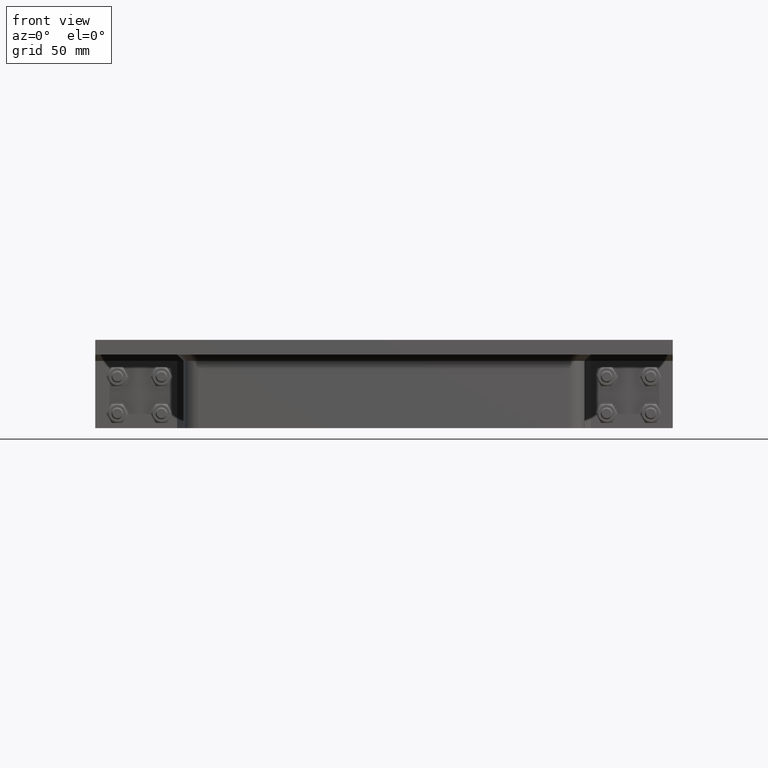
[diagram: clean part render]
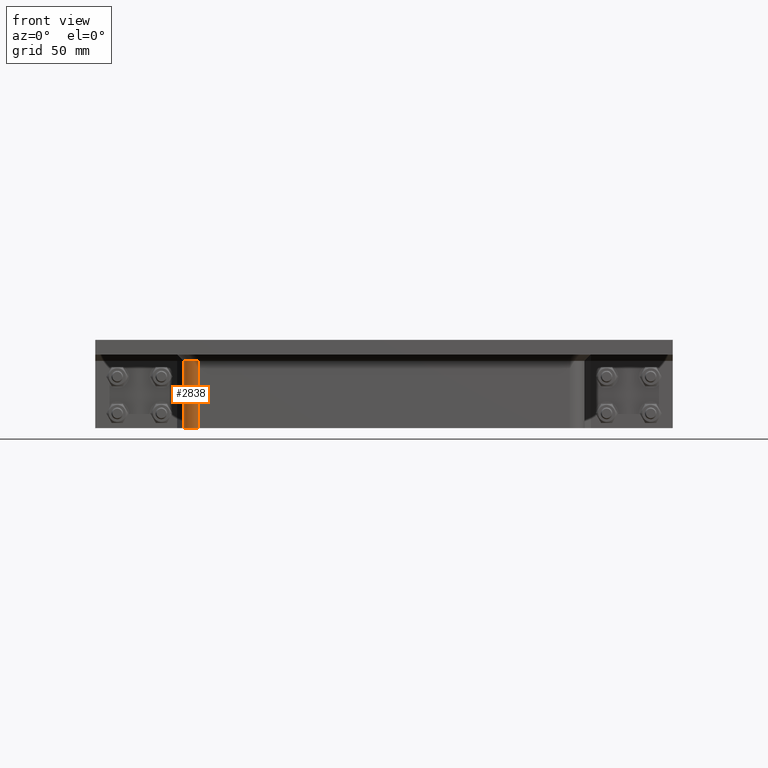
[diagram: same view with one face highlighted and labeled with its STEP entity id]
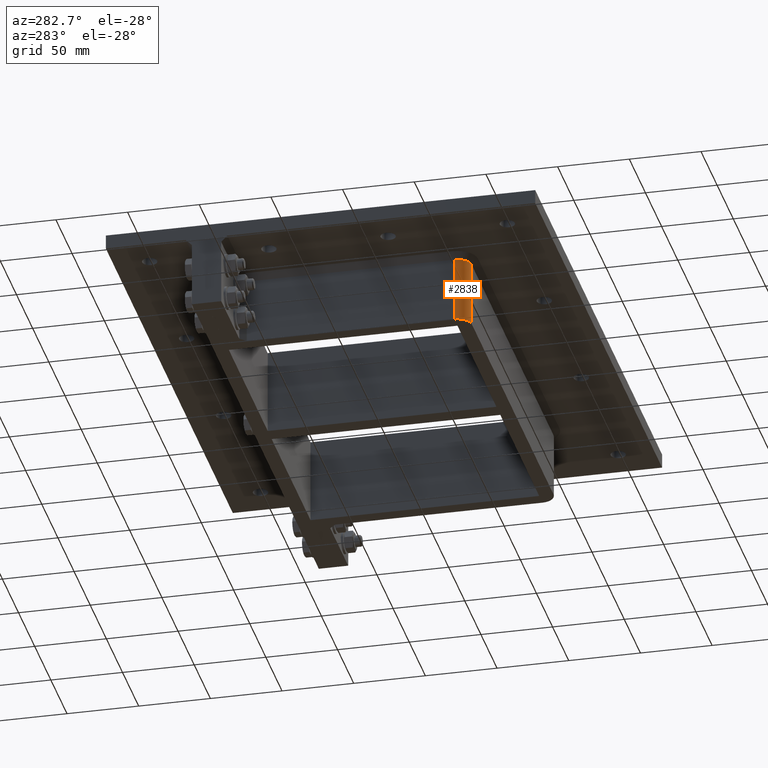
[diagram: same view with one face highlighted and labeled with its STEP entity id]
A machine part, front view. The second image highlights one B-rep face of the part: STEP entity #2838.
A second angle (auxiliary view) of the same face is appended — the face is thin or edge-on in the first view.
In plain terms, the highlighted cylindrical surface (edge-blend (fillet) strip) has radius 10 mm, axis along (0, 0, -1).
Its self-contained STEP definition (entity closure, byte-faithful):
#189=CYLINDRICAL_SURFACE('',#3255,10.);
#313=CIRCLE('',#3172,10.);
#344=CIRCLE('',#3225,10.);
#509=FACE_OUTER_BOUND('',#702,.T.);
#702=EDGE_LOOP('',(#2207,#2208,#2209,#2210));
#950=LINE('',#4584,#1171);
#962=LINE('',#4611,#1183);
#1171=VECTOR('',#3722,10.);
#1183=VECTOR('',#3764,10.);
#1323=VERTEX_POINT('',#4371);
#1325=VERTEX_POINT('',#4377);
#1382=VERTEX_POINT('',#4535);
#1383=VERTEX_POINT('',#4537);
#1577=EDGE_CURVE('',#1325,#1323,#313,.T.);
#1656=EDGE_CURVE('',#1382,#1383,#344,.T.);
#1681=EDGE_CURVE('',#1325,#1383,#950,.T.);
#1693=EDGE_CURVE('',#1323,#1382,#962,.T.);
#2207=ORIENTED_EDGE('',*,*,#1577,.F.);
#2208=ORIENTED_EDGE('',*,*,#1681,.T.);
#2209=ORIENTED_EDGE('',*,*,#1656,.F.);
#2210=ORIENTED_EDGE('',*,*,#1693,.F.);
#2838=ADVANCED_FACE('',(#509),#189,.T.);
#3172=AXIS2_PLACEMENT_3D('',#4379,#3520,#3521);
#3225=AXIS2_PLACEMENT_3D('',#4538,#3674,#3675);
#3255=AXIS2_PLACEMENT_3D('',#4610,#3762,#3763);
#3520=DIRECTION('center_axis',(0.,0.,1.));
#3521=DIRECTION('ref_axis',(-1.,0.,0.));
#3674=DIRECTION('center_axis',(0.,0.,-1.));
#3675=DIRECTION('ref_axis',(-1.,0.,0.));
#3722=DIRECTION('',(0.,0.,-1.));
#3762=DIRECTION('center_axis',(0.,0.,-1.));
#3763=DIRECTION('ref_axis',(-1.,0.,0.));
#3764=DIRECTION('',(0.,0.,-1.));
#4371=CARTESIAN_POINT('',(-126.5,-89.75,-14.3));
#4377=CARTESIAN_POINT('',(-136.5,-79.75,-14.3));
#4379=CARTESIAN_POINT('Origin',(-126.5,-79.75,-14.3));
#4535=CARTESIAN_POINT('',(-126.5,-89.75,-60.));
#4537=CARTESIAN_POINT('',(-136.5,-79.75,-60.));
#4538=CARTESIAN_POINT('Origin',(-126.5,-79.75,-60.));
#4584=CARTESIAN_POINT('',(-136.5,-79.75,0.));
#4610=CARTESIAN_POINT('Origin',(-126.5,-79.75,0.));
#4611=CARTESIAN_POINT('',(-126.5,-89.75,0.));